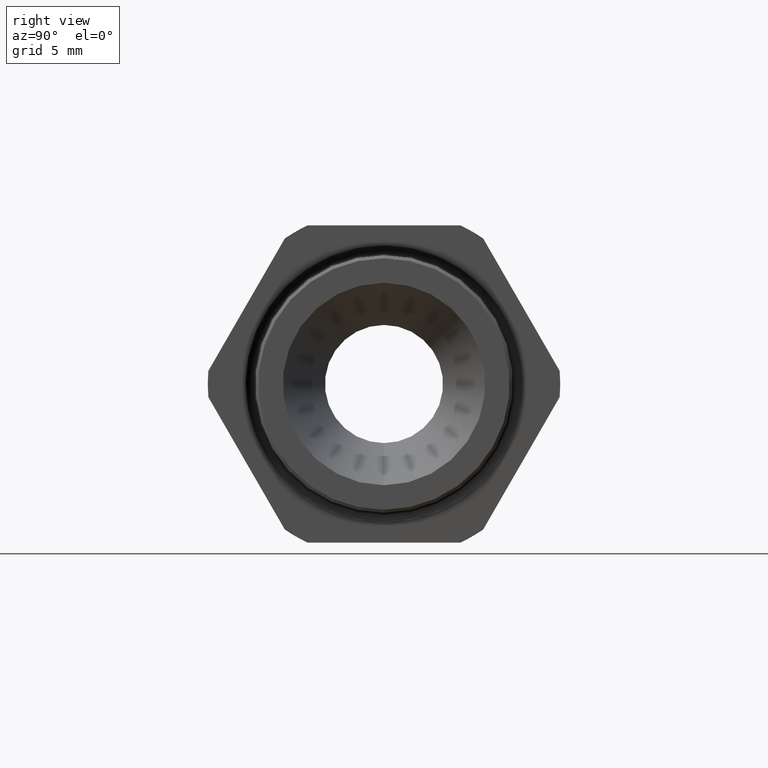
[diagram: clean part render]
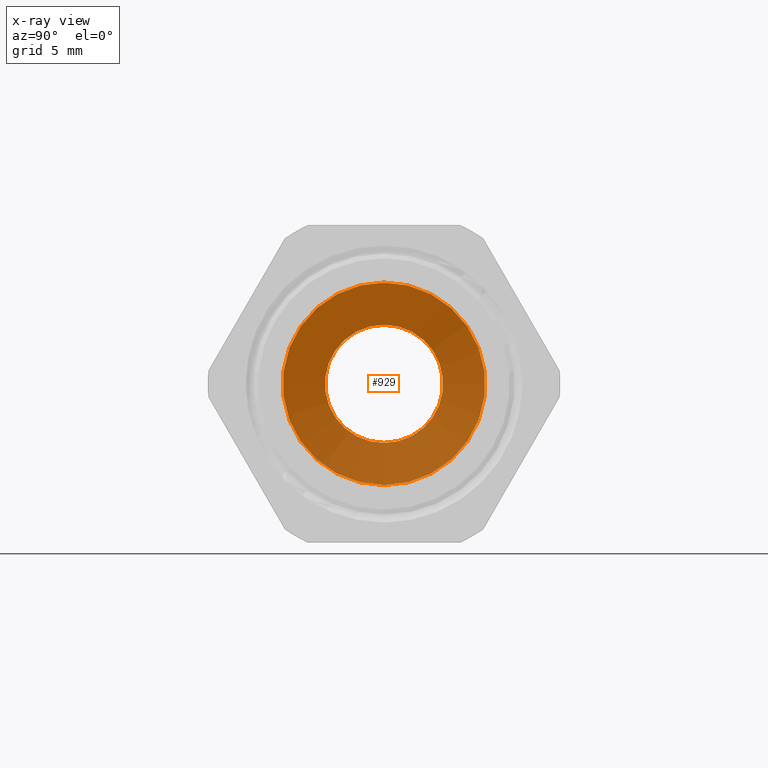
[diagram: x-ray — body ghosted, one internal face saturated and labeled with its STEP entity id]
A machine part, right view, then the same camera in x-ray: the body is ghosted and one INTERNAL B-rep face — a face not visible from any outside direction — is saturated and labeled: STEP entity #929.
In plain terms, the highlighted planar face has unit normal (1, 0, 0).
Its self-contained STEP definition (entity closure, byte-faithful):
#923 = VERTEX_POINT ( 'NONE', #2579 ) ;
#925 = EDGE_CURVE ( 'NONE', #926, #923, #2578, .T. ) ;
#926 = VERTEX_POINT ( 'NONE', #2573 ) ;
#929 = ADVANCED_FACE ( 'NONE', ( #2568, #2567 ), #2565, .T. ) ;
#930 = EDGE_LOOP ( 'NONE', ( #931, #932 ) ) ;
#931 = ORIENTED_EDGE ( 'NONE', *, *, #925, .T. ) ;
#932 = ORIENTED_EDGE ( 'NONE', *, *, #983, .T. ) ;
#957 = VERTEX_POINT ( 'NONE', #2637 ) ;
#959 = EDGE_CURVE ( 'NONE', #957, #960, #2635, .T. ) ;
#960 = VERTEX_POINT ( 'NONE', #2636 ) ;
#983 = EDGE_CURVE ( 'NONE', #923, #926, #2662, .T. ) ;
#984 = EDGE_LOOP ( 'NONE', ( #985, #987 ) ) ;
#985 = ORIENTED_EDGE ( 'NONE', *, *, #986, .F. ) ;
#986 = EDGE_CURVE ( 'NONE', #960, #957, #2721, .T. ) ;
#987 = ORIENTED_EDGE ( 'NONE', *, *, #959, .F. ) ;
#2301 = DIRECTION ( 'NONE',  ( 0.0000000000000000000, 0.0000000000000000000, -1.000000000000000000 ) ) ;
#2562 = DIRECTION ( 'NONE',  ( 1.000000000000000000, 0.0000000000000000000, 0.0000000000000000000 ) ) ;
#2563 = CARTESIAN_POINT ( 'NONE',  ( -1.173149606299212600, 0.3000000000000000400, 0.0000000000000000000 ) ) ;
#2564 = AXIS2_PLACEMENT_3D ( 'NONE', #2563, #2562, #2301 ) ;
#2565 = PLANE ( 'NONE',  #2564 ) ;
#2567 = FACE_BOUND ( 'NONE', #984, .T. ) ;
#2568 = FACE_OUTER_BOUND ( 'NONE', #930, .T. ) ;
#2573 = CARTESIAN_POINT ( 'NONE',  ( -1.173149606299212400, 0.0000000000000000000, -0.3000000000000000400 ) ) ;
#2574 = DIRECTION ( 'NONE',  ( 0.0000000000000000000, 0.0000000000000000000, -1.000000000000000000 ) ) ;
#2575 = DIRECTION ( 'NONE',  ( 1.000000000000000000, 0.0000000000000000000, 0.0000000000000000000 ) ) ;
#2576 = CARTESIAN_POINT ( 'NONE',  ( -1.173149606299212400, 0.0000000000000000000, 0.0000000000000000000 ) ) ;
#2577 = AXIS2_PLACEMENT_3D ( 'NONE', #2576, #2575, #2574 ) ;
#2578 = CIRCLE ( 'NONE', #2577, 0.3000000000000000400 ) ;
#2579 = CARTESIAN_POINT ( 'NONE',  ( -1.173149606299212400, 3.673940397442059500E-017, 0.3000000000000000400 ) ) ;
#2631 = DIRECTION ( 'NONE',  ( 0.0000000000000000000, 0.0000000000000000000, -1.000000000000000000 ) ) ;
#2632 = DIRECTION ( 'NONE',  ( 1.000000000000000000, 0.0000000000000000000, 0.0000000000000000000 ) ) ;
#2633 = CARTESIAN_POINT ( 'NONE',  ( -1.173149606299212600, 0.0000000000000000000, 0.0000000000000000000 ) ) ;
#2634 = AXIS2_PLACEMENT_3D ( 'NONE', #2633, #2632, #2631 ) ;
#2635 = CIRCLE ( 'NONE', #2634, 0.1749999999999999900 ) ;
#2636 = CARTESIAN_POINT ( 'NONE',  ( -1.173149606299212600, 0.0000000000000000000, -0.1749999999999999900 ) ) ;
#2637 = CARTESIAN_POINT ( 'NONE',  ( -1.173149606299212600, 2.143131898507868000E-017, 0.1749999999999999900 ) ) ;
#2658 = DIRECTION ( 'NONE',  ( 0.0000000000000000000, 0.0000000000000000000, -1.000000000000000000 ) ) ;
#2659 = DIRECTION ( 'NONE',  ( 1.000000000000000000, 0.0000000000000000000, 0.0000000000000000000 ) ) ;
#2660 = CARTESIAN_POINT ( 'NONE',  ( -1.173149606299212400, 0.0000000000000000000, 0.0000000000000000000 ) ) ;
#2661 = AXIS2_PLACEMENT_3D ( 'NONE', #2660, #2659, #2658 ) ;
#2662 = CIRCLE ( 'NONE', #2661, 0.3000000000000000400 ) ;
#2717 = DIRECTION ( 'NONE',  ( 0.0000000000000000000, 0.0000000000000000000, -1.000000000000000000 ) ) ;
#2718 = DIRECTION ( 'NONE',  ( 1.000000000000000000, 0.0000000000000000000, 0.0000000000000000000 ) ) ;
#2719 = CARTESIAN_POINT ( 'NONE',  ( -1.173149606299212600, 0.0000000000000000000, 0.0000000000000000000 ) ) ;
#2720 = AXIS2_PLACEMENT_3D ( 'NONE', #2719, #2718, #2717 ) ;
#2721 = CIRCLE ( 'NONE', #2720, 0.1749999999999999900 ) ;